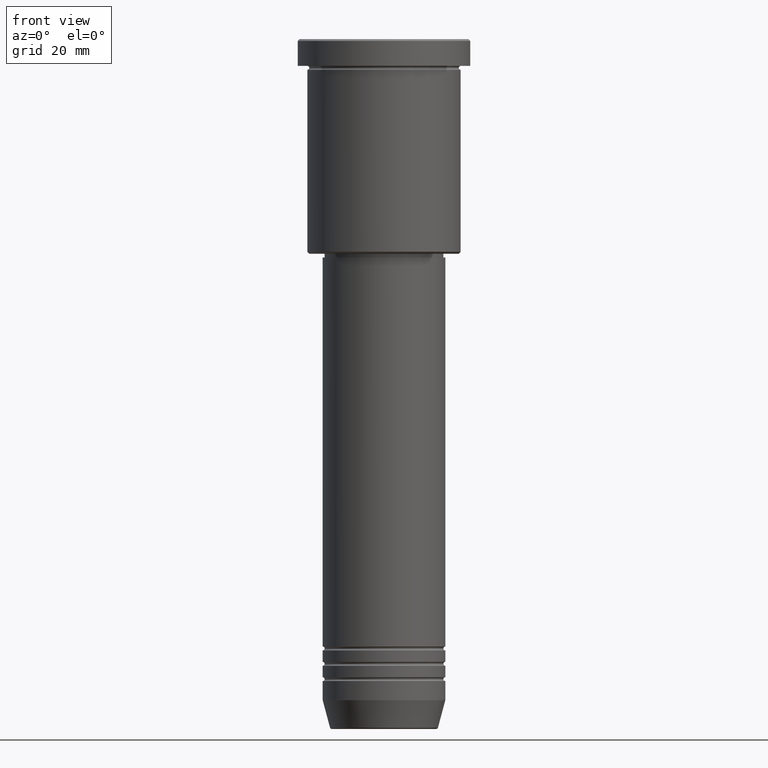
[diagram: clean part render]
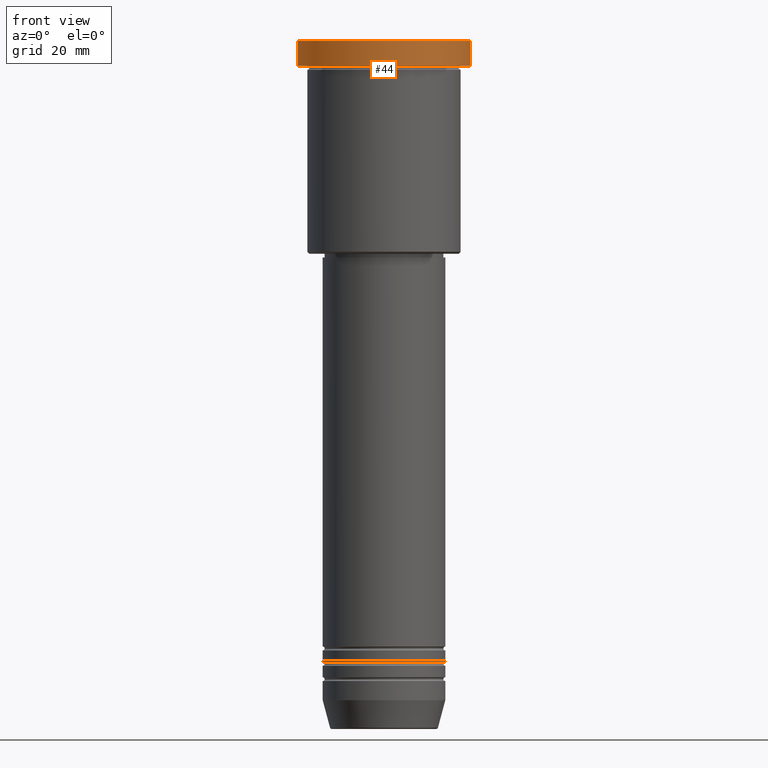
[diagram: same view with one face highlighted and labeled with its STEP entity id]
A machine part, front view. The second image highlights one B-rep face of the part: STEP entity #44.
In plain terms, the highlighted cylindrical surface (partial cylindrical patch) has radius 22.5 mm, axis along (-0, -0, 1).
Its self-contained STEP definition (entity closure, byte-faithful):
#38 = AXIS2_PLACEMENT_3D ( 'NONE', #804, #232, #968 ) ;
#44 = ADVANCED_FACE ( 'NONE', ( #609 ), #170, .T. ) ;
#85 = CARTESIAN_POINT ( 'NONE',  ( 22.50000000000000000, 0.000000000000000000, -0.4999999999999935052 ) ) ;
#146 = EDGE_CURVE ( 'NONE', #424, #354, #433, .T. ) ;
#155 = DIRECTION ( 'NONE',  ( -0.000000000000000000, -0.000000000000000000, 1.000000000000000000 ) ) ;
#166 = AXIS2_PLACEMENT_3D ( 'NONE', #536, #542, #733 ) ;
#170 = CYLINDRICAL_SURFACE ( 'NONE', #166, 22.50000000000000000 ) ;
#190 = EDGE_CURVE ( 'NONE', #354, #1073, #692, .T. ) ;
#209 = VECTOR ( 'NONE', #672, 1000.000000000000000 ) ;
#225 = AXIS2_PLACEMENT_3D ( 'NONE', #921, #646, #389 ) ;
#232 = DIRECTION ( 'NONE',  ( 0.000000000000000000, 0.000000000000000000, -1.000000000000000000 ) ) ;
#250 = ORIENTED_EDGE ( 'NONE', *, *, #855, .T. ) ;
#275 = ORIENTED_EDGE ( 'NONE', *, *, #146, .T. ) ;
#317 = LINE ( 'NONE', #893, #209 ) ;
#354 = VERTEX_POINT ( 'NONE', #926 ) ;
#389 = DIRECTION ( 'NONE',  ( 1.000000000000000000, 0.000000000000000000, 0.000000000000000000 ) ) ;
#424 = VERTEX_POINT ( 'NONE', #833 ) ;
#426 = CARTESIAN_POINT ( 'NONE',  ( 22.50000000000000000, 0.000000000000000000, 0.000000000000000000 ) ) ;
#433 = CIRCLE ( 'NONE', #225, 22.50000000000000000 ) ;
#536 = CARTESIAN_POINT ( 'NONE',  ( 0.000000000000000000, 0.000000000000000000, 0.000000000000000000 ) ) ;
#542 = DIRECTION ( 'NONE',  ( -0.000000000000000000, -0.000000000000000000, 1.000000000000000000 ) ) ;
#572 = CARTESIAN_POINT ( 'NONE',  ( -22.50000000000000000, 2.755455298081544778E-15, -0.4999999999999935052 ) ) ;
#607 = EDGE_CURVE ( 'NONE', #424, #716, #317, .T. ) ;
#609 = FACE_OUTER_BOUND ( 'NONE', #1070, .T. ) ;
#645 = VECTOR ( 'NONE', #155, 1000.000000000000000 ) ;
#646 = DIRECTION ( 'NONE',  ( -0.000000000000000000, -0.000000000000000000, 1.000000000000000000 ) ) ;
#672 = DIRECTION ( 'NONE',  ( -0.000000000000000000, -0.000000000000000000, 1.000000000000000000 ) ) ;
#692 = LINE ( 'NONE', #426, #645 ) ;
#716 = VERTEX_POINT ( 'NONE', #572 ) ;
#733 = DIRECTION ( 'NONE',  ( 1.000000000000000000, 0.000000000000000000, 0.000000000000000000 ) ) ;
#791 = ORIENTED_EDGE ( 'NONE', *, *, #607, .F. ) ;
#804 = CARTESIAN_POINT ( 'NONE',  ( 0.000000000000000000, 0.000000000000000000, -0.4999999999999935052 ) ) ;
#833 = CARTESIAN_POINT ( 'NONE',  ( -22.50000000000000000, 2.755455298081544778E-15, -6.999999999999995559 ) ) ;
#855 = EDGE_CURVE ( 'NONE', #1073, #716, #969, .T. ) ;
#893 = CARTESIAN_POINT ( 'NONE',  ( -22.50000000000000000, 2.755455298081544778E-15, 0.000000000000000000 ) ) ;
#921 = CARTESIAN_POINT ( 'NONE',  ( 0.000000000000000000, 0.000000000000000000, -6.999999999999995559 ) ) ;
#926 = CARTESIAN_POINT ( 'NONE',  ( 22.50000000000000000, 0.000000000000000000, -6.999999999999995559 ) ) ;
#968 = DIRECTION ( 'NONE',  ( 1.000000000000000000, 0.000000000000000000, 0.000000000000000000 ) ) ;
#969 = CIRCLE ( 'NONE', #38, 22.50000000000000000 ) ;
#1029 = ORIENTED_EDGE ( 'NONE', *, *, #190, .T. ) ;
#1070 = EDGE_LOOP ( 'NONE', ( #791, #275, #1029, #250 ) ) ;
#1073 = VERTEX_POINT ( 'NONE', #85 ) ;